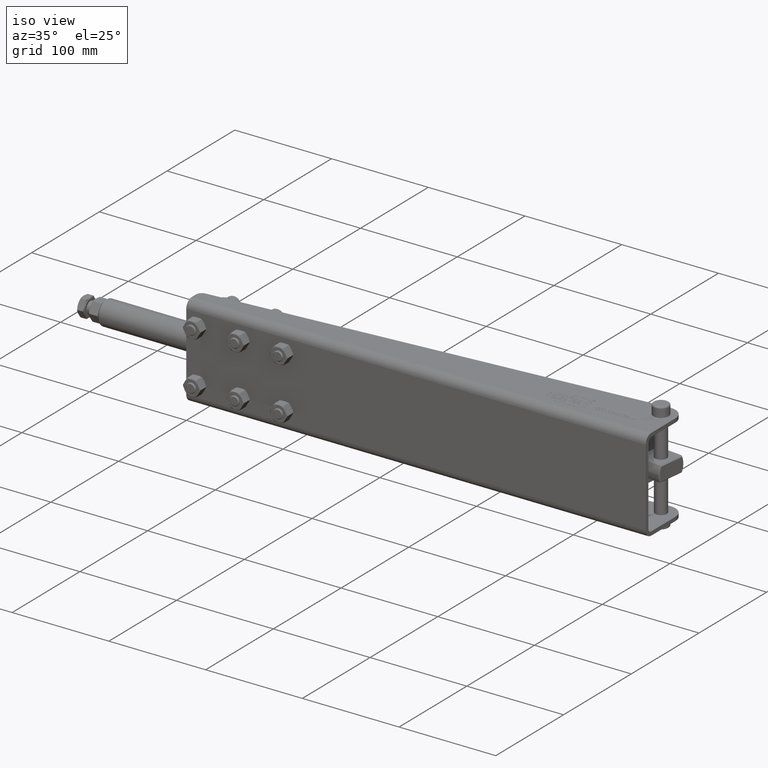
[diagram: clean part render]
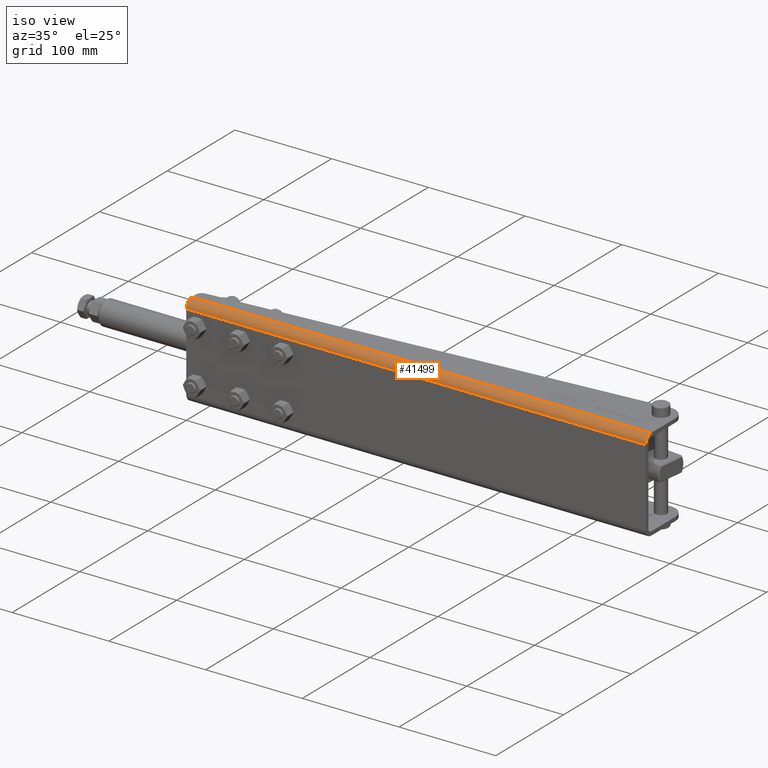
[diagram: same view with one face highlighted and labeled with its STEP entity id]
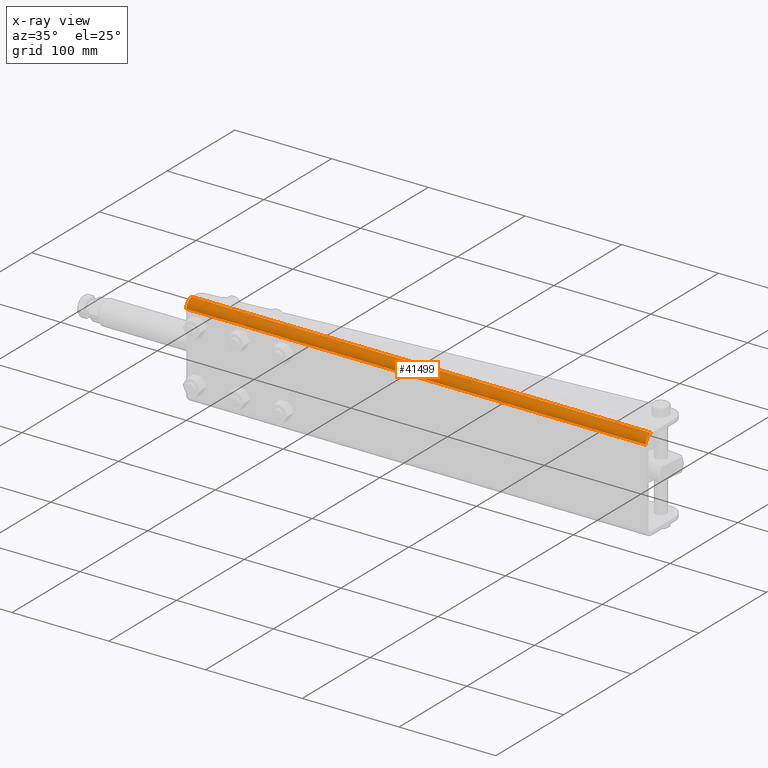
[diagram: x-ray of the same camera — body ghosted, the highlighted face saturated]
A machine part, iso view. The second image highlights one B-rep face of the part: STEP entity #41499.
The next image is the same camera in x-ray: the body ghosted, the highlighted face saturated — about 0% of this face is hidden behind the body in this view.
In plain terms, the highlighted cylindrical surface (edge-blend (fillet) strip) has radius 8 mm, axis along (-1, 0, 0).
Its self-contained STEP definition (entity closure, byte-faithful):
#1405 = DIRECTION ( 'NONE',  ( -1.000000000000000000, 0.0000000000000000000, 0.0000000000000000000 ) ) ;
#2573 = DIRECTION ( 'NONE',  ( 0.0000000000000000000, 0.0000000000000000000, 1.000000000000000000 ) ) ;
#3554 = CARTESIAN_POINT ( 'NONE',  ( -98.00000000000000000, -2.999999999999986200, 39.99999999999992200 ) ) ;
#6956 = AXIS2_PLACEMENT_3D ( 'NONE', #28941, #1405, #33562 ) ;
#7426 = EDGE_LOOP ( 'NONE', ( #10589, #41878, #36986, #25943 ) ) ;
#8049 = CARTESIAN_POINT ( 'NONE',  ( 377.0000000000000000, 5.000000000000007100, 47.99999999999992900 ) ) ;
#8288 = VECTOR ( 'NONE', #24392, 1000.000000000000000 ) ;
#8794 = VERTEX_POINT ( 'NONE', #8049 ) ;
#8971 = CARTESIAN_POINT ( 'NONE',  ( 377.0000000000000000, 4.999999999999979600, 39.99999999999981500 ) ) ;
#10266 = CIRCLE ( 'NONE', #6956, 8.000000000000042600 ) ;
#10589 = ORIENTED_EDGE ( 'NONE', *, *, #33654, .F. ) ;
#11317 = AXIS2_PLACEMENT_3D ( 'NONE', #8971, #41113, #13559 ) ;
#13559 = DIRECTION ( 'NONE',  ( 0.0000000000000000000, 0.0000000000000000000, 1.000000000000000000 ) ) ;
#13882 = LINE ( 'NONE', #58394, #26174 ) ;
#16961 = EDGE_CURVE ( 'NONE', #44804, #8794, #52994, .T. ) ;
#17788 = FACE_OUTER_BOUND ( 'NONE', #7426, .T. ) ;
#20570 = LINE ( 'NONE', #24191, #8288 ) ;
#21183 = AXIS2_PLACEMENT_3D ( 'NONE', #52976, #32909, #2573 ) ;
#24191 = CARTESIAN_POINT ( 'NONE',  ( 377.0000000000000000, 5.000000000000007100, 47.99999999999992900 ) ) ;
#24392 = DIRECTION ( 'NONE',  ( -1.000000000000000000, 0.0000000000000000000, 0.0000000000000000000 ) ) ;
#25943 = ORIENTED_EDGE ( 'NONE', *, *, #29669, .T. ) ;
#26174 = VECTOR ( 'NONE', #35488, 1000.000000000000000 ) ;
#28941 = CARTESIAN_POINT ( 'NONE',  ( -98.00000000000000000, 4.999999999999979600, 39.99999999999981500 ) ) ;
#29669 = EDGE_CURVE ( 'NONE', #8794, #40902, #20570, .T. ) ;
#30197 = EDGE_CURVE ( 'NONE', #44804, #44082, #13882, .T. ) ;
#32909 = DIRECTION ( 'NONE',  ( -1.000000000000000000, 0.0000000000000000000, 0.0000000000000000000 ) ) ;
#33562 = DIRECTION ( 'NONE',  ( 0.0000000000000000000, 0.0000000000000000000, 1.000000000000000000 ) ) ;
#33654 = EDGE_CURVE ( 'NONE', #44082, #40902, #10266, .T. ) ;
#35488 = DIRECTION ( 'NONE',  ( -1.000000000000000000, 0.0000000000000000000, 0.0000000000000000000 ) ) ;
#36986 = ORIENTED_EDGE ( 'NONE', *, *, #16961, .T. ) ;
#39381 = CYLINDRICAL_SURFACE ( 'NONE', #21183, 8.000000000000042600 ) ;
#40902 = VERTEX_POINT ( 'NONE', #46649 ) ;
#41113 = DIRECTION ( 'NONE',  ( -1.000000000000000000, 0.0000000000000000000, 0.0000000000000000000 ) ) ;
#41499 = ADVANCED_FACE ( 'NONE', ( #17788 ), #39381, .T. ) ;
#41878 = ORIENTED_EDGE ( 'NONE', *, *, #30197, .F. ) ;
#44082 = VERTEX_POINT ( 'NONE', #3554 ) ;
#44804 = VERTEX_POINT ( 'NONE', #52265 ) ;
#46649 = CARTESIAN_POINT ( 'NONE',  ( -98.00000000000000000, 5.000000000000007100, 47.99999999999992900 ) ) ;
#52265 = CARTESIAN_POINT ( 'NONE',  ( 377.0000000000000000, -2.999999999999986200, 39.99999999999992200 ) ) ;
#52976 = CARTESIAN_POINT ( 'NONE',  ( 377.0000000000000000, 4.999999999999979600, 39.99999999999981500 ) ) ;
#52994 = CIRCLE ( 'NONE', #11317, 8.000000000000042600 ) ;
#58394 = CARTESIAN_POINT ( 'NONE',  ( 377.0000000000000000, -2.999999999999986200, 39.99999999999992200 ) ) ;